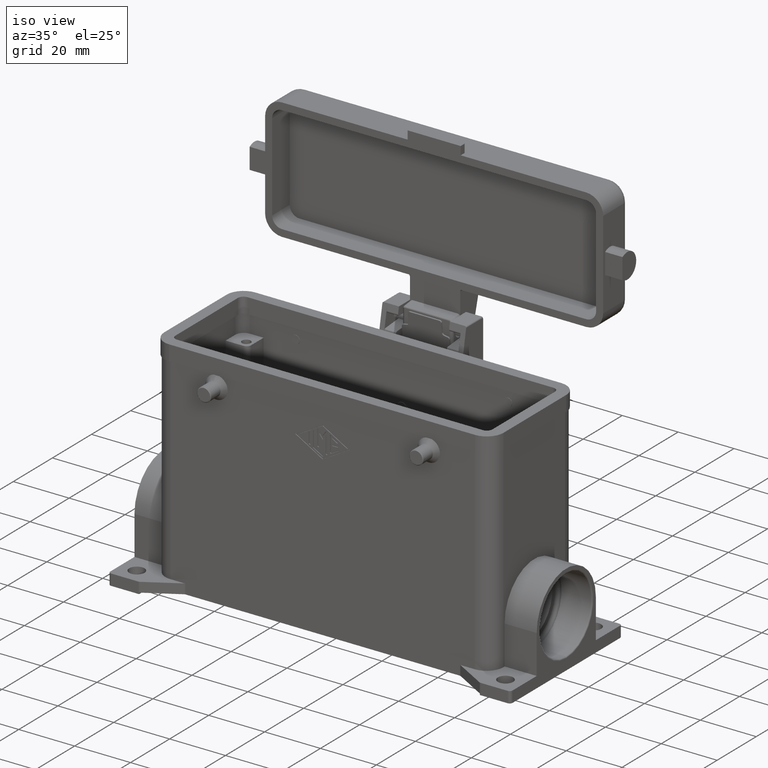
[diagram: clean part render]
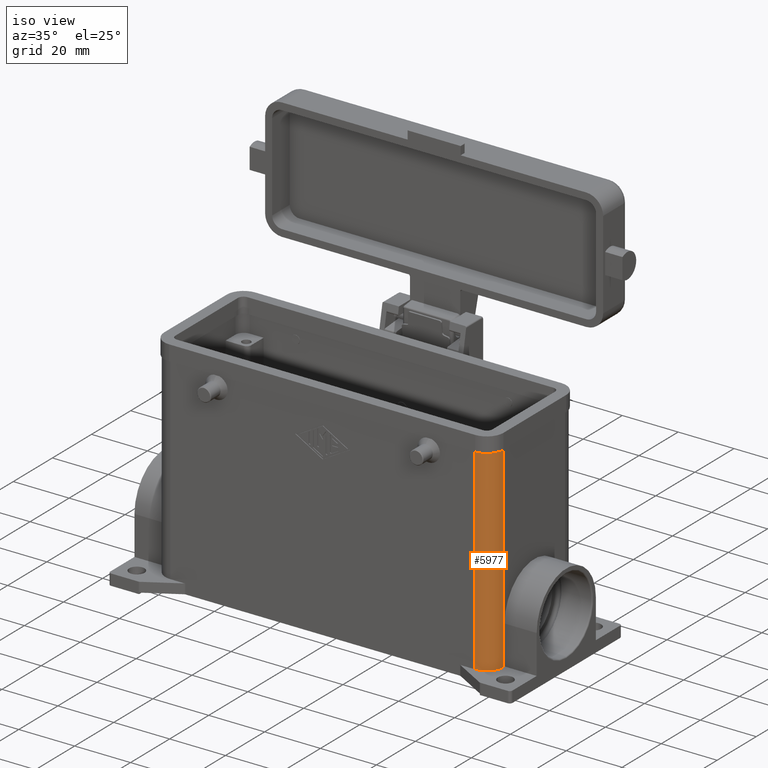
[diagram: same view with one face highlighted and labeled with its STEP entity id]
A machine part, iso view. The second image highlights one B-rep face of the part: STEP entity #5977.
In plain terms, the highlighted cylindrical surface (edge-blend (fillet) strip) has radius 6 mm, axis along (0, 0, 1).
Its self-contained STEP definition (entity closure, byte-faithful):
#5600=CARTESIAN_POINT('',(60.500000000000028,-15.750000000000000,-47.0));
#5601=VERTEX_POINT('',#5600);
#5608=CARTESIAN_POINT('',(54.499999999999993,-21.749999999999989,-47.0));
#5609=VERTEX_POINT('',#5608);
#5610=CARTESIAN_POINT('',(54.500000000000014,-15.749999999999991,-47.0));
#5611=DIRECTION('',(0.0,0.0,1.0));
#5612=DIRECTION('',(0.0,1.0,0.0));
#5613=AXIS2_PLACEMENT_3D('',#5610,#5611,#5612);
#5614=CIRCLE('',#5613,6.000000000000001);
#5615=EDGE_CURVE('',#5609,#5601,#5614,.T.);
#5744=CARTESIAN_POINT('',(54.500000000000021,-21.749999999999975,23.500000000000000));
#5745=VERTEX_POINT('',#5744);
#5746=CARTESIAN_POINT('',(54.500000000000021,-21.749999999999975,23.500000000000000));
#5747=DIRECTION('',(0.0,0.0,-1.0));
#5748=VECTOR('',#5747,70.500000000000000);
#5749=LINE('',#5746,#5748);
#5750=EDGE_CURVE('',#5745,#5609,#5749,.T.);
#5953=CARTESIAN_POINT('',(54.500000000000014,-15.749999999999991,1.500000000000000));
#5954=DIRECTION('',(0.0,0.0,1.0));
#5955=DIRECTION('',(0.0,1.0,0.0));
#5956=AXIS2_PLACEMENT_3D('',#5953,#5954,#5955);
#5957=CYLINDRICAL_SURFACE('',#5956,6.000000000000001);
#5958=ORIENTED_EDGE('',*,*,#5615,.T.);
#5959=CARTESIAN_POINT('',(60.500000000000000,-15.749999999999989,23.500000000000000));
#5960=VERTEX_POINT('',#5959);
#5961=CARTESIAN_POINT('',(60.500000000000000,-15.749999999999989,23.500000000000000));
#5962=DIRECTION('',(0.0,0.0,-1.0));
#5963=VECTOR('',#5962,70.500000000000000);
#5964=LINE('',#5961,#5963);
#5965=EDGE_CURVE('',#5960,#5601,#5964,.T.);
#5966=ORIENTED_EDGE('',*,*,#5965,.F.);
#5967=CARTESIAN_POINT('',(54.500000000000014,-15.749999999999991,23.500000000000000));
#5968=DIRECTION('',(0.0,0.0,-1.0));
#5969=DIRECTION('',(0.0,1.0,0.0));
#5970=AXIS2_PLACEMENT_3D('',#5967,#5968,#5969);
#5971=CIRCLE('',#5970,6.000000000000001);
#5972=EDGE_CURVE('',#5960,#5745,#5971,.T.);
#5973=ORIENTED_EDGE('',*,*,#5972,.T.);
#5974=ORIENTED_EDGE('',*,*,#5750,.T.);
#5975=EDGE_LOOP('',(#5958,#5966,#5973,#5974));
#5976=FACE_OUTER_BOUND('',#5975,.T.);
#5977=ADVANCED_FACE('',(#5976),#5957,.T.);